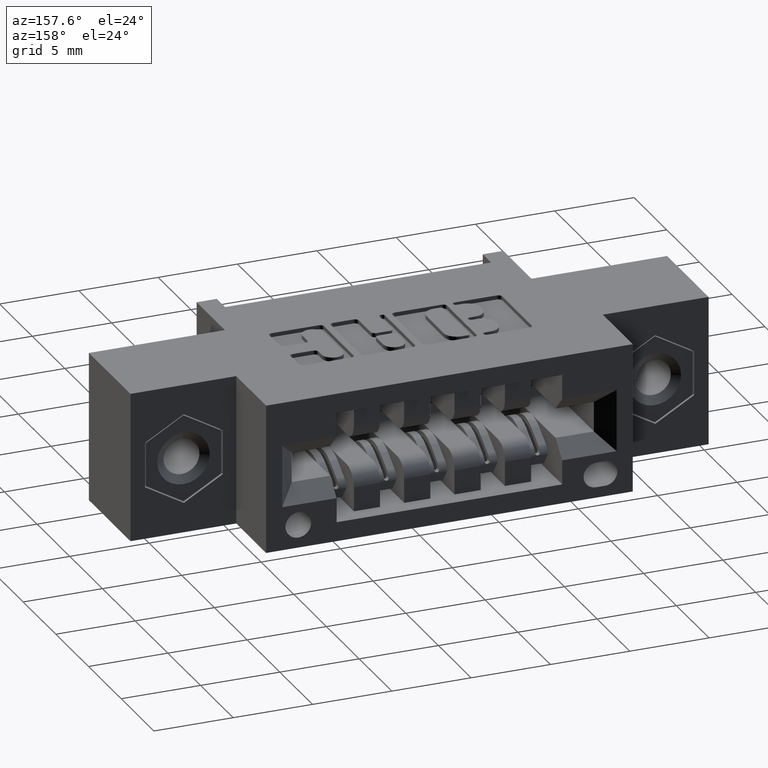
[diagram: clean part render]
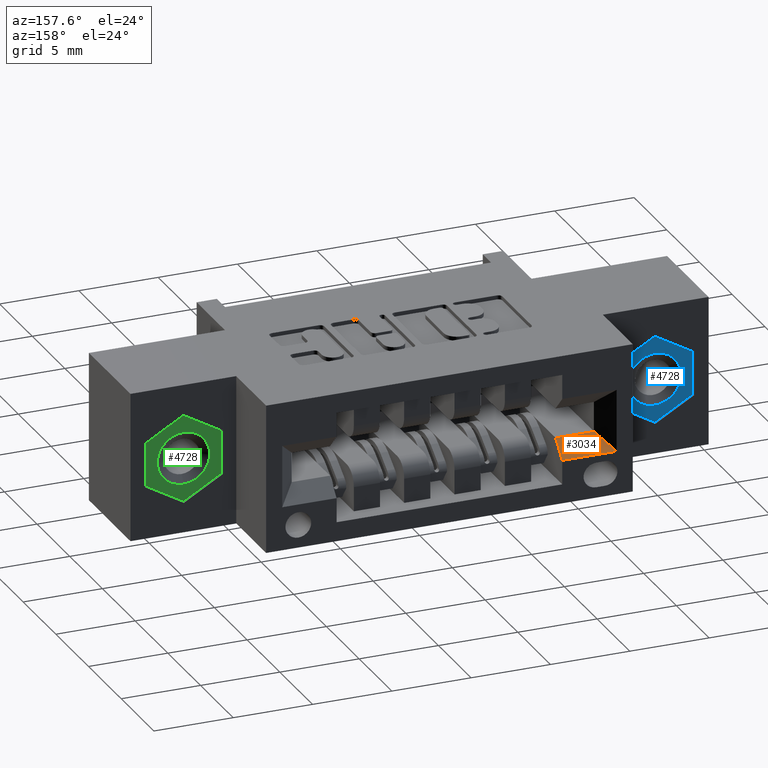
[diagram: same view with three faces highlighted in distinct colors, each labeled with its STEP entity id]
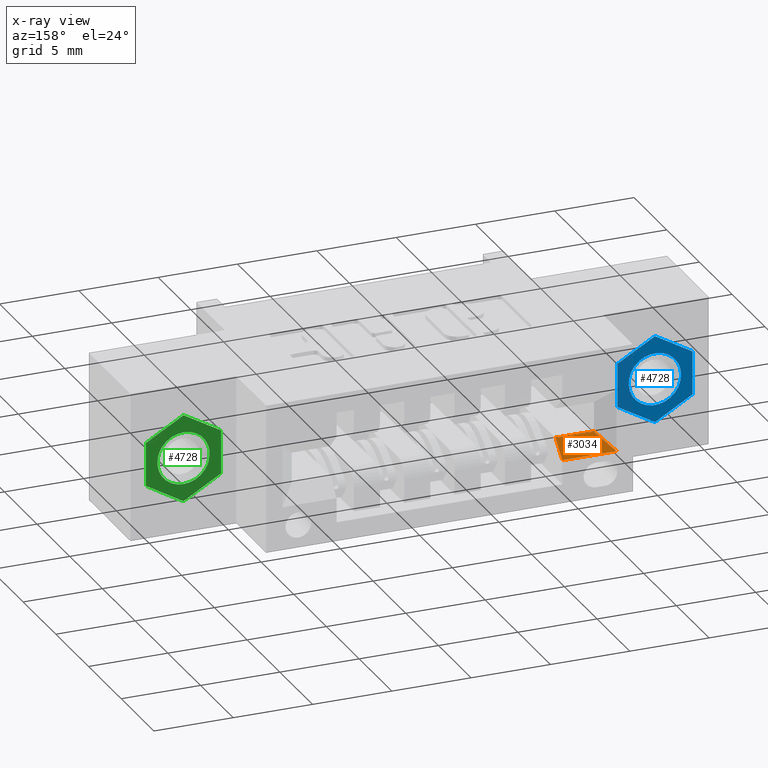
[diagram: x-ray of the same camera — body ghosted, the three highlighted faces saturated]
A machine part, auxiliary view with three faces highlighted in distinct colors.
The next image is the same camera in x-ray (body ghosted, the three faces saturated) — at least one of them is partly hidden behind the body in this view.
Their STEP definitions:

[orange] entity #3034 — the highlighted planar face has unit normal (0, -0.7071, -0.7071).
#38 = CARTESIAN_POINT ( 'NONE',  ( 0.4375000000000000555, 0.3777500000000009184, -0.03974999999999953570 ) ) ;
#354 = EDGE_CURVE ( 'NONE', #5513, #1531, #722, .T. ) ;
#722 = LINE ( 'NONE', #5082, #9130 ) ;
#768 = DIRECTION ( 'NONE',  ( 0.0000000000000000000, 0.7071067811865451302, -0.7071067811865499042 ) ) ;
#1452 = CARTESIAN_POINT ( 'NONE',  ( 0.3025000000000000466, 0.5999999999999999778, -0.2620000000000000662 ) ) ;
#1456 = ORIENTED_EDGE ( 'NONE', *, *, #6867, .F. ) ;
#1485 = PLANE ( 'NONE',  #5229 ) ;
#1531 = VERTEX_POINT ( 'NONE', #3495 ) ;
#2024 = LINE ( 'NONE', #6963, #8929 ) ;
#2315 = DIRECTION ( 'NONE',  ( -1.000000000000000000, 0.0000000000000000000, 0.0000000000000000000 ) ) ;
#2384 = DIRECTION ( 'NONE',  ( 1.000000000000000000, 0.0000000000000000000, 0.0000000000000000000 ) ) ;
#2465 = EDGE_CURVE ( 'NONE', #5436, #8947, #4714, .T. ) ;
#2696 = EDGE_LOOP ( 'NONE', ( #4533, #2877, #1456, #3658 ) ) ;
#2877 = ORIENTED_EDGE ( 'NONE', *, *, #2465, .F. ) ;
#2883 = VECTOR ( 'NONE', #8898, 39.37007874015748143 ) ;
#3034 = ADVANCED_FACE ( 'NONE', ( #3697 ), #1485, .F. ) ;
#3495 = CARTESIAN_POINT ( 'NONE',  ( 0.3425000000000000266, 0.5600000000000002753, -0.2220000000000000862 ) ) ;
#3658 = ORIENTED_EDGE ( 'NONE', *, *, #354, .F. ) ;
#3697 = FACE_OUTER_BOUND ( 'NONE', #2696, .T. ) ;
#3878 = CARTESIAN_POINT ( 'NONE',  ( 0.0000000000000000000, 0.5999999999999999778, -0.2620000000000000662 ) ) ;
#4414 = CARTESIAN_POINT ( 'NONE',  ( 0.3425000000000000266, 0.5600000000000002753, -0.2220000000000000862 ) ) ;
#4533 = ORIENTED_EDGE ( 'NONE', *, *, #8009, .F. ) ;
#4714 = LINE ( 'NONE', #3878, #7436 ) ;
#5082 = CARTESIAN_POINT ( 'NONE',  ( 0.3425000000000000266, 0.5600000000000002753, -0.2220000000000000862 ) ) ;
#5229 = AXIS2_PLACEMENT_3D ( 'NONE', #4414, #7355, #768 ) ;
#5436 = VERTEX_POINT ( 'NONE', #1452 ) ;
#5513 = VERTEX_POINT ( 'NONE', #7992 ) ;
#5899 = LINE ( 'NONE', #38, #2883 ) ;
#6867 = EDGE_CURVE ( 'NONE', #1531, #5436, #2024, .T. ) ;
#6963 = CARTESIAN_POINT ( 'NONE',  ( 0.3425000000000000266, 0.5600000000000002753, -0.2220000000000000862 ) ) ;
#7099 = DIRECTION ( 'NONE',  ( -0.5773502691896269523, 0.5773502691896230665, -0.5773502691896269523 ) ) ;
#7355 = DIRECTION ( 'NONE',  ( 0.0000000000000000000, -0.7071067811865499042, -0.7071067811865451302 ) ) ;
#7436 = VECTOR ( 'NONE', #2384, 39.37007874015748143 ) ;
#7992 = CARTESIAN_POINT ( 'NONE',  ( 0.4375000000000000555, 0.5600000000000002753, -0.2220000000000000862 ) ) ;
#8009 = EDGE_CURVE ( 'NONE', #8947, #5513, #5899, .T. ) ;
#8728 = CARTESIAN_POINT ( 'NONE',  ( 0.4375000000000000555, 0.5999999999999999778, -0.2620000000000000662 ) ) ;
#8898 = DIRECTION ( 'NONE',  ( -0.0000000000000000000, -0.7071067811865451302, 0.7071067811865499042 ) ) ;
#8929 = VECTOR ( 'NONE', #7099, 39.37007874015748854 ) ;
#8947 = VERTEX_POINT ( 'NONE', #8728 ) ;
#9130 = VECTOR ( 'NONE', #2315, 39.37007874015748143 ) ;

[blue] entity #4728 — the highlighted planar face has unit normal (0, -1, 0).
#249 = EDGE_CURVE ( 'NONE', #7883, #9193, #6891, .T. ) ;
#711 = VERTEX_POINT ( 'NONE', #2756 ) ;
#832 = CARTESIAN_POINT ( 'NONE',  ( 3.414809992080329023E-17, -6.829619984160658046E-17, -0.06500000000000014100 ) ) ;
#1113 = VERTEX_POINT ( 'NONE', #3041 ) ;
#1748 = ORIENTED_EDGE ( 'NONE', *, *, #9526, .F. ) ;
#1833 = ORIENTED_EDGE ( 'NONE', *, *, #6301, .F. ) ;
#1905 = EDGE_CURVE ( 'NONE', #6410, #7565, #3273, .T. ) ;
#2142 = CARTESIAN_POINT ( 'NONE',  ( 0.09349999999999944467, 0.0000000000000000000, -0.05398225016923008379 ) ) ;
#2244 = CARTESIAN_POINT ( 'NONE',  ( 3.414809992080329023E-17, 0.0000000000000000000, -0.1079645003384598484 ) ) ;
#2308 = CARTESIAN_POINT ( 'NONE',  ( 0.09349999999999998590, 0.0000000000000000000, 0.05398225016923022257 ) ) ;
#2335 = VECTOR ( 'NONE', #9060, 39.37007874015748143 ) ;
#2585 = CARTESIAN_POINT ( 'NONE',  ( 0.09349999999999998590, 0.0000000000000000000, 0.05398225016923022257 ) ) ;
#2586 = LINE ( 'NONE', #6997, #7328 ) ;
#2662 = DIRECTION ( 'NONE',  ( 0.0000000000000000000, 0.0000000000000000000, -1.000000000000000000 ) ) ;
#2694 = ORIENTED_EDGE ( 'NONE', *, *, #3381, .F. ) ;
#2720 = CARTESIAN_POINT ( 'NONE',  ( -5.292955487724510356E-16, 0.0000000000000000000, 0.1079645003384601676 ) ) ;
#2756 = CARTESIAN_POINT ( 'NONE',  ( 0.09349999999999944467, 0.0000000000000000000, -0.05398225016923008379 ) ) ;
#2837 = DIRECTION ( 'NONE',  ( 0.0000000000000000000, 1.000000000000000000, 0.0000000000000000000 ) ) ;
#2886 = DIRECTION ( 'NONE',  ( 0.0000000000000000000, 0.0000000000000000000, 1.000000000000000000 ) ) ;
#2939 = EDGE_LOOP ( 'NONE', ( #1748, #5779 ) ) ;
#2987 = EDGE_LOOP ( 'NONE', ( #4263, #2694, #3897, #8808, #6407, #1833 ) ) ;
#3041 = CARTESIAN_POINT ( 'NONE',  ( -0.09349999999999997202, 0.0000000000000000000, -0.05398225016922977848 ) ) ;
#3130 = CARTESIAN_POINT ( 'NONE',  ( 4.210830411526111159E-17, -6.829619984160658046E-17, 0.06500000000000026590 ) ) ;
#3198 = VECTOR ( 'NONE', #5006, 39.37007874015748854 ) ;
#3212 = AXIS2_PLACEMENT_3D ( 'NONE', #6767, #3825, #3725 ) ;
#3273 = CIRCLE ( 'NONE', #8683, 0.06500000000000019651 ) ;
#3363 = DIRECTION ( 'NONE',  ( -0.8660254037844385966, 0.0000000000000000000, 0.5000000000000000000 ) ) ;
#3381 = EDGE_CURVE ( 'NONE', #8581, #711, #9178, .T. ) ;
#3555 = VERTEX_POINT ( 'NONE', #2244 ) ;
#3725 = DIRECTION ( 'NONE',  ( 0.0000000000000000000, 0.0000000000000000000, -1.000000000000000000 ) ) ;
#3825 = DIRECTION ( 'NONE',  ( 0.0000000000000000000, -1.000000000000000000, 0.0000000000000000000 ) ) ;
#3897 = ORIENTED_EDGE ( 'NONE', *, *, #7326, .F. ) ;
#4049 = CARTESIAN_POINT ( 'NONE',  ( 3.414809992080329023E-17, 0.0000000000000000000, -0.1079645003384598484 ) ) ;
#4263 = ORIENTED_EDGE ( 'NONE', *, *, #7149, .F. ) ;
#4728 = ADVANCED_FACE ( 'NONE', ( #6160, #4777 ), #9113, .F. ) ;
#4777 = FACE_OUTER_BOUND ( 'NONE', #2987, .T. ) ;
#4823 = DIRECTION ( 'NONE',  ( 0.0000000000000000000, -1.000000000000000000, 0.0000000000000000000 ) ) ;
#4916 = CARTESIAN_POINT ( 'NONE',  ( 3.414809992080329023E-17, -6.829619984160658046E-17, 6.829619984160658046E-17 ) ) ;
#4953 = CARTESIAN_POINT ( 'NONE',  ( -0.09349999999999994427, 0.0000000000000000000, 0.05398225016923036135 ) ) ;
#5006 = DIRECTION ( 'NONE',  ( -0.8660254037844384856, 0.0000000000000000000, -0.5000000000000002220 ) ) ;
#5030 = VECTOR ( 'NONE', #7913, 39.37007874015748143 ) ;
#5475 = VECTOR ( 'NONE', #9231, 39.37007874015748143 ) ;
#5679 = LINE ( 'NONE', #7135, #5475 ) ;
#5779 = ORIENTED_EDGE ( 'NONE', *, *, #1905, .F. ) ;
#6160 = FACE_BOUND ( 'NONE', #2939, .T. ) ;
#6295 = CIRCLE ( 'NONE', #3212, 0.06500000000000019651 ) ;
#6301 = EDGE_CURVE ( 'NONE', #3555, #1113, #2586, .T. ) ;
#6407 = ORIENTED_EDGE ( 'NONE', *, *, #8073, .F. ) ;
#6410 = VERTEX_POINT ( 'NONE', #3130 ) ;
#6483 = CARTESIAN_POINT ( 'NONE',  ( -5.292955487724510356E-16, 0.0000000000000000000, 0.1079645003384601676 ) ) ;
#6767 = CARTESIAN_POINT ( 'NONE',  ( 3.414809992080329023E-17, -6.829619984160658046E-17, 6.829619984160658046E-17 ) ) ;
#6891 = LINE ( 'NONE', #4953, #8026 ) ;
#6974 = CARTESIAN_POINT ( 'NONE',  ( -0.09349999999999994427, 0.0000000000000000000, 0.05398225016923036135 ) ) ;
#6997 = CARTESIAN_POINT ( 'NONE',  ( 3.414809992080329023E-17, 0.0000000000000000000, -0.1079645003384598484 ) ) ;
#7135 = CARTESIAN_POINT ( 'NONE',  ( -0.09349999999999997202, 0.0000000000000000000, -0.05398225016922977848 ) ) ;
#7138 = AXIS2_PLACEMENT_3D ( 'NONE', #4049, #2837, #2886 ) ;
#7149 = EDGE_CURVE ( 'NONE', #711, #3555, #8822, .T. ) ;
#7158 = DIRECTION ( 'NONE',  ( 0.8660254037844389297, 0.0000000000000000000, 0.4999999999999994449 ) ) ;
#7326 = EDGE_CURVE ( 'NONE', #9193, #8581, #8014, .T. ) ;
#7328 = VECTOR ( 'NONE', #3363, 39.37007874015748143 ) ;
#7565 = VERTEX_POINT ( 'NONE', #832 ) ;
#7883 = VERTEX_POINT ( 'NONE', #6974 ) ;
#7913 = DIRECTION ( 'NONE',  ( 0.8660254037844389297, 0.0000000000000000000, -0.4999999999999994449 ) ) ;
#8014 = LINE ( 'NONE', #6483, #5030 ) ;
#8026 = VECTOR ( 'NONE', #7158, 39.37007874015748143 ) ;
#8073 = EDGE_CURVE ( 'NONE', #1113, #7883, #5679, .T. ) ;
#8581 = VERTEX_POINT ( 'NONE', #2308 ) ;
#8683 = AXIS2_PLACEMENT_3D ( 'NONE', #4916, #4823, #2662 ) ;
#8808 = ORIENTED_EDGE ( 'NONE', *, *, #249, .F. ) ;
#8822 = LINE ( 'NONE', #2142, #3198 ) ;
#9060 = DIRECTION ( 'NONE',  ( -1.276756478318928838E-15, 0.0000000000000000000, -1.000000000000000000 ) ) ;
#9113 = PLANE ( 'NONE',  #7138 ) ;
#9178 = LINE ( 'NONE', #2585, #2335 ) ;
#9193 = VERTEX_POINT ( 'NONE', #2720 ) ;
#9231 = DIRECTION ( 'NONE',  ( 0.0000000000000000000, 0.0000000000000000000, 1.000000000000000000 ) ) ;
#9526 = EDGE_CURVE ( 'NONE', #7565, #6410, #6295, .T. ) ;

[green] entity #4728 — the highlighted planar face has unit normal (0, -1, 0).
#249 = EDGE_CURVE ( 'NONE', #7883, #9193, #6891, .T. ) ;
#711 = VERTEX_POINT ( 'NONE', #2756 ) ;
#832 = CARTESIAN_POINT ( 'NONE',  ( 3.414809992080329023E-17, -6.829619984160658046E-17, -0.06500000000000014100 ) ) ;
#1113 = VERTEX_POINT ( 'NONE', #3041 ) ;
#1748 = ORIENTED_EDGE ( 'NONE', *, *, #9526, .F. ) ;
#1833 = ORIENTED_EDGE ( 'NONE', *, *, #6301, .F. ) ;
#1905 = EDGE_CURVE ( 'NONE', #6410, #7565, #3273, .T. ) ;
#2142 = CARTESIAN_POINT ( 'NONE',  ( 0.09349999999999944467, 0.0000000000000000000, -0.05398225016923008379 ) ) ;
#2244 = CARTESIAN_POINT ( 'NONE',  ( 3.414809992080329023E-17, 0.0000000000000000000, -0.1079645003384598484 ) ) ;
#2308 = CARTESIAN_POINT ( 'NONE',  ( 0.09349999999999998590, 0.0000000000000000000, 0.05398225016923022257 ) ) ;
#2335 = VECTOR ( 'NONE', #9060, 39.37007874015748143 ) ;
#2585 = CARTESIAN_POINT ( 'NONE',  ( 0.09349999999999998590, 0.0000000000000000000, 0.05398225016923022257 ) ) ;
#2586 = LINE ( 'NONE', #6997, #7328 ) ;
#2662 = DIRECTION ( 'NONE',  ( 0.0000000000000000000, 0.0000000000000000000, -1.000000000000000000 ) ) ;
#2694 = ORIENTED_EDGE ( 'NONE', *, *, #3381, .F. ) ;
#2720 = CARTESIAN_POINT ( 'NONE',  ( -5.292955487724510356E-16, 0.0000000000000000000, 0.1079645003384601676 ) ) ;
#2756 = CARTESIAN_POINT ( 'NONE',  ( 0.09349999999999944467, 0.0000000000000000000, -0.05398225016923008379 ) ) ;
#2837 = DIRECTION ( 'NONE',  ( 0.0000000000000000000, 1.000000000000000000, 0.0000000000000000000 ) ) ;
#2886 = DIRECTION ( 'NONE',  ( 0.0000000000000000000, 0.0000000000000000000, 1.000000000000000000 ) ) ;
#2939 = EDGE_LOOP ( 'NONE', ( #1748, #5779 ) ) ;
#2987 = EDGE_LOOP ( 'NONE', ( #4263, #2694, #3897, #8808, #6407, #1833 ) ) ;
#3041 = CARTESIAN_POINT ( 'NONE',  ( -0.09349999999999997202, 0.0000000000000000000, -0.05398225016922977848 ) ) ;
#3130 = CARTESIAN_POINT ( 'NONE',  ( 4.210830411526111159E-17, -6.829619984160658046E-17, 0.06500000000000026590 ) ) ;
#3198 = VECTOR ( 'NONE', #5006, 39.37007874015748854 ) ;
#3212 = AXIS2_PLACEMENT_3D ( 'NONE', #6767, #3825, #3725 ) ;
#3273 = CIRCLE ( 'NONE', #8683, 0.06500000000000019651 ) ;
#3363 = DIRECTION ( 'NONE',  ( -0.8660254037844385966, 0.0000000000000000000, 0.5000000000000000000 ) ) ;
#3381 = EDGE_CURVE ( 'NONE', #8581, #711, #9178, .T. ) ;
#3555 = VERTEX_POINT ( 'NONE', #2244 ) ;
#3725 = DIRECTION ( 'NONE',  ( 0.0000000000000000000, 0.0000000000000000000, -1.000000000000000000 ) ) ;
#3825 = DIRECTION ( 'NONE',  ( 0.0000000000000000000, -1.000000000000000000, 0.0000000000000000000 ) ) ;
#3897 = ORIENTED_EDGE ( 'NONE', *, *, #7326, .F. ) ;
#4049 = CARTESIAN_POINT ( 'NONE',  ( 3.414809992080329023E-17, 0.0000000000000000000, -0.1079645003384598484 ) ) ;
#4263 = ORIENTED_EDGE ( 'NONE', *, *, #7149, .F. ) ;
#4728 = ADVANCED_FACE ( 'NONE', ( #6160, #4777 ), #9113, .F. ) ;
#4777 = FACE_OUTER_BOUND ( 'NONE', #2987, .T. ) ;
#4823 = DIRECTION ( 'NONE',  ( 0.0000000000000000000, -1.000000000000000000, 0.0000000000000000000 ) ) ;
#4916 = CARTESIAN_POINT ( 'NONE',  ( 3.414809992080329023E-17, -6.829619984160658046E-17, 6.829619984160658046E-17 ) ) ;
#4953 = CARTESIAN_POINT ( 'NONE',  ( -0.09349999999999994427, 0.0000000000000000000, 0.05398225016923036135 ) ) ;
#5006 = DIRECTION ( 'NONE',  ( -0.8660254037844384856, 0.0000000000000000000, -0.5000000000000002220 ) ) ;
#5030 = VECTOR ( 'NONE', #7913, 39.37007874015748143 ) ;
#5475 = VECTOR ( 'NONE', #9231, 39.37007874015748143 ) ;
#5679 = LINE ( 'NONE', #7135, #5475 ) ;
#5779 = ORIENTED_EDGE ( 'NONE', *, *, #1905, .F. ) ;
#6160 = FACE_BOUND ( 'NONE', #2939, .T. ) ;
#6295 = CIRCLE ( 'NONE', #3212, 0.06500000000000019651 ) ;
#6301 = EDGE_CURVE ( 'NONE', #3555, #1113, #2586, .T. ) ;
#6407 = ORIENTED_EDGE ( 'NONE', *, *, #8073, .F. ) ;
#6410 = VERTEX_POINT ( 'NONE', #3130 ) ;
#6483 = CARTESIAN_POINT ( 'NONE',  ( -5.292955487724510356E-16, 0.0000000000000000000, 0.1079645003384601676 ) ) ;
#6767 = CARTESIAN_POINT ( 'NONE',  ( 3.414809992080329023E-17, -6.829619984160658046E-17, 6.829619984160658046E-17 ) ) ;
#6891 = LINE ( 'NONE', #4953, #8026 ) ;
#6974 = CARTESIAN_POINT ( 'NONE',  ( -0.09349999999999994427, 0.0000000000000000000, 0.05398225016923036135 ) ) ;
#6997 = CARTESIAN_POINT ( 'NONE',  ( 3.414809992080329023E-17, 0.0000000000000000000, -0.1079645003384598484 ) ) ;
#7135 = CARTESIAN_POINT ( 'NONE',  ( -0.09349999999999997202, 0.0000000000000000000, -0.05398225016922977848 ) ) ;
#7138 = AXIS2_PLACEMENT_3D ( 'NONE', #4049, #2837, #2886 ) ;
#7149 = EDGE_CURVE ( 'NONE', #711, #3555, #8822, .T. ) ;
#7158 = DIRECTION ( 'NONE',  ( 0.8660254037844389297, 0.0000000000000000000, 0.4999999999999994449 ) ) ;
#7326 = EDGE_CURVE ( 'NONE', #9193, #8581, #8014, .T. ) ;
#7328 = VECTOR ( 'NONE', #3363, 39.37007874015748143 ) ;
#7565 = VERTEX_POINT ( 'NONE', #832 ) ;
#7883 = VERTEX_POINT ( 'NONE', #6974 ) ;
#7913 = DIRECTION ( 'NONE',  ( 0.8660254037844389297, 0.0000000000000000000, -0.4999999999999994449 ) ) ;
#8014 = LINE ( 'NONE', #6483, #5030 ) ;
#8026 = VECTOR ( 'NONE', #7158, 39.37007874015748143 ) ;
#8073 = EDGE_CURVE ( 'NONE', #1113, #7883, #5679, .T. ) ;
#8581 = VERTEX_POINT ( 'NONE', #2308 ) ;
#8683 = AXIS2_PLACEMENT_3D ( 'NONE', #4916, #4823, #2662 ) ;
#8808 = ORIENTED_EDGE ( 'NONE', *, *, #249, .F. ) ;
#8822 = LINE ( 'NONE', #2142, #3198 ) ;
#9060 = DIRECTION ( 'NONE',  ( -1.276756478318928838E-15, 0.0000000000000000000, -1.000000000000000000 ) ) ;
#9113 = PLANE ( 'NONE',  #7138 ) ;
#9178 = LINE ( 'NONE', #2585, #2335 ) ;
#9193 = VERTEX_POINT ( 'NONE', #2720 ) ;
#9231 = DIRECTION ( 'NONE',  ( 0.0000000000000000000, 0.0000000000000000000, 1.000000000000000000 ) ) ;
#9526 = EDGE_CURVE ( 'NONE', #7565, #6410, #6295, .T. ) ;